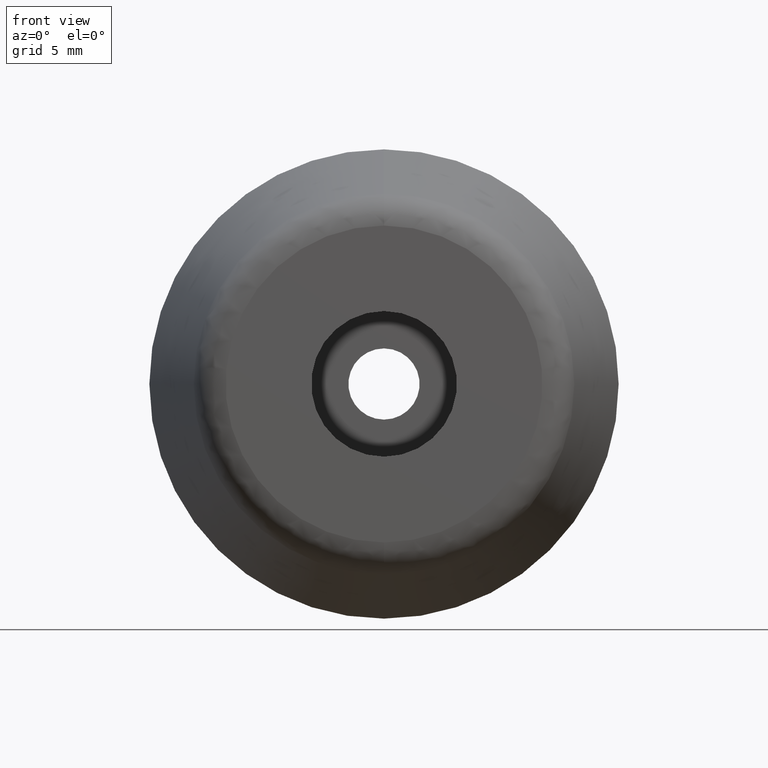
[diagram: clean part render]
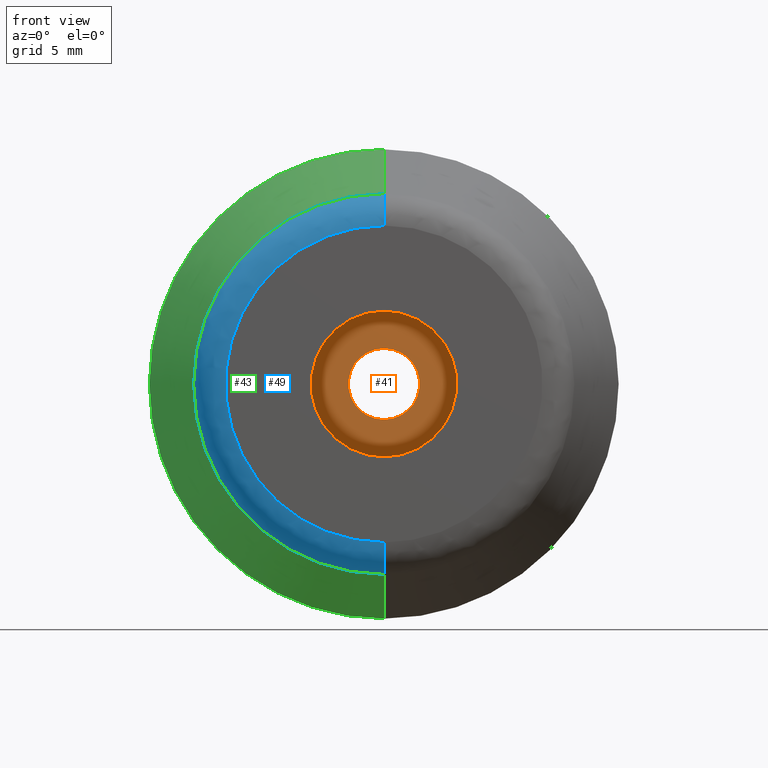
[diagram: same view with three faces highlighted in distinct colors, each labeled with its STEP entity id]
A machine part, front view with three faces highlighted in distinct colors.
Their STEP definitions:

[orange] entity #41 — the highlighted planar face has unit normal (0, -1, -0).
#41=ADVANCED_FACE('',(#63,#64),#62,.T.);
#62=PLANE('',#173);
#63=FACE_OUTER_BOUND('',#174,.T.);
#64=FACE_BOUND('',#175,.T.);
#170=CARTESIAN_POINT('',(-9.35307436087E+00,-9.00000000000E+00,1.03500000000E+01));
#171=DIRECTION('',(0.00000000000E+00,-1.00000000000E+00,-0.00000000000E+00));
#172=DIRECTION('',(0.00000000000E+00,0.00000000000E+00,-1.00000000000E+00));
#173=AXIS2_PLACEMENT_3D('',#170,#171,#172);
#174=EDGE_LOOP('',(#280,#281));
#175=EDGE_LOOP('',(#282,#283));
#280=ORIENTED_EDGE('',*,*,#324,.T.);
#281=ORIENTED_EDGE('',*,*,#325,.T.);
#282=ORIENTED_EDGE('',*,*,#326,.F.);
#283=ORIENTED_EDGE('',*,*,#327,.F.);
#324=EDGE_CURVE('',#370,#371,#372,.T.);
#325=EDGE_CURVE('',#371,#370,#378,.T.);
#326=EDGE_CURVE('',#384,#385,#386,.T.);
#327=EDGE_CURVE('',#385,#384,#392,.T.);
#370=VERTEX_POINT('',#508);
#371=VERTEX_POINT('',#509);
#372=CIRCLE('',#513,4.50000000000E+00);
#378=CIRCLE('',#517,4.50000000000E+00);
#384=VERTEX_POINT('',#518);
#385=VERTEX_POINT('',#519);
#386=CIRCLE('',#523,2.20000000000E+00);
#392=CIRCLE('',#527,2.20000000000E+00);
#508=CARTESIAN_POINT('',(0.00000000000E+00,-9.00000000000E+00,-4.50000000000E+00));
#509=CARTESIAN_POINT('',(2.96059473233E-16,-9.00000000000E+00,4.50000000000E+00));
#510=CARTESIAN_POINT('',(0.00000000000E+00,-9.00000000000E+00,0.00000000000E+00));
#511=DIRECTION('',(0.00000000000E+00,-1.00000000000E+00,-0.00000000000E+00));
#512=DIRECTION('',(-1.22460635382E-16,0.00000000000E+00,-1.00000000000E+00));
#513=AXIS2_PLACEMENT_3D('',#510,#511,#512);
#514=CARTESIAN_POINT('',(0.00000000000E+00,-9.00000000000E+00,0.00000000000E+00));
#515=DIRECTION('',(0.00000000000E+00,-1.00000000000E+00,-0.00000000000E+00));
#516=DIRECTION('',(-1.22460635382E-16,0.00000000000E+00,-1.00000000000E+00));
#517=AXIS2_PLACEMENT_3D('',#514,#515,#516);
#518=CARTESIAN_POINT('',(1.48029736617E-16,-9.00000000000E+00,2.20000000000E+00));
#519=CARTESIAN_POINT('',(0.00000000000E+00,-9.00000000000E+00,-2.20000000000E+00));
#520=CARTESIAN_POINT('',(0.00000000000E+00,-9.00000000000E+00,0.00000000000E+00));
#521=DIRECTION('',(0.00000000000E+00,-1.00000000000E+00,-0.00000000000E+00));
#522=DIRECTION('',(-1.22460635382E-16,0.00000000000E+00,-1.00000000000E+00));
#523=AXIS2_PLACEMENT_3D('',#520,#521,#522);
#524=CARTESIAN_POINT('',(0.00000000000E+00,-9.00000000000E+00,0.00000000000E+00));
#525=DIRECTION('',(0.00000000000E+00,-1.00000000000E+00,-0.00000000000E+00));
#526=DIRECTION('',(-1.22460635382E-16,0.00000000000E+00,-1.00000000000E+00));
#527=AXIS2_PLACEMENT_3D('',#524,#525,#526);

[blue] entity #49 — the highlighted face is a freeform B-spline surface patch.
#49=ADVANCED_FACE('',(#145),#144,.T.);
#144=( BOUNDED_SURFACE() B_SPLINE_SURFACE( 2,2,((#224,#225,#226,#227,#228),(#229,#230,#231,#232,#233),(#234,#235,#236,#237,#238),(#239,#240,#241,#242,#243),(#244,#245,#246,#247,#248)), .UNSPECIFIED.,.F.,.F.,.F.) B_SPLINE_SURFACE_WITH_KNOTS((3,2,3),(3,2,3),(0.00000000000E+00,5.00000000000E-01,1.00000000000E+00),(0.00000000000E+00,5.00000000000E-01,1.00000000000E+00), .UNSPECIFIED. ) GEOMETRIC_REPRESENTATION_ITEM() RATIONAL_B_SPLINE_SURFACE(((1.00000000000E+00,7.60250805153E-01,1.00000000000E+00,7.60250805153E-01,1.00000000000E+00),(7.07106781187E-01,5.37578499727E-01,7.07106781187E-01,5.37578499727E-01,7.07106781187E-01),(1.00000000000E+00,7.60250805153E-01,1.00000000000E+00,7.60250805153E-01,1.00000000000E+00),(7.07106781187E-01,5.37578499727E-01,7.07106781187E-01,5.37578499727E-01,7.07106781187E-01),(1.00000000000E+00,7.60250805153E-01,1.00000000000E+00,7.60250805153E-01,1.00000000000E+00))) REPRESENTATION_ITEM('') SURFACE() );
#145=FACE_OUTER_BOUND('',#249,.T.);
#224=CARTESIAN_POINT('',(-1.44093773622E-15,-1.73119251469E+01,1.17665381347E+01));
#225=CARTESIAN_POINT('',(-1.40829730690E-15,-1.90000000000E+01,1.15000000000E+01));
#226=CARTESIAN_POINT('',(-1.19901357554E-15,-1.90000000000E+01,9.79101220403E+00));
#227=CARTESIAN_POINT('',(-9.89729844187E-16,-1.90000000000E+01,8.08202440807E+00));
#228=CARTESIAN_POINT('',(-9.57089414859E-16,-1.73119251469E+01,7.81548627338E+00));
#229=CARTESIAN_POINT('',(-1.17665381347E+01,-1.73119251469E+01,1.17665381347E+01));
#230=CARTESIAN_POINT('',(-1.15000000000E+01,-1.90000000000E+01,1.15000000000E+01));
#231=CARTESIAN_POINT('',(-9.79101220403E+00,-1.90000000000E+01,9.79101220403E+00));
#232=CARTESIAN_POINT('',(-8.08202440807E+00,-1.90000000000E+01,8.08202440807E+00));
#233=CARTESIAN_POINT('',(-7.81548627338E+00,-1.73119251469E+01,7.81548627338E+00));
#234=CARTESIAN_POINT('',(-1.17665381347E+01,-1.73119251469E+01,-7.20445073039E-16));
#235=CARTESIAN_POINT('',(-1.15000000000E+01,-1.90000000000E+01,-7.04125397386E-16));
#236=CARTESIAN_POINT('',(-9.79101220403E+00,-1.90000000000E+01,-5.99486987737E-16));
#237=CARTESIAN_POINT('',(-8.08202440807E+00,-1.90000000000E+01,-4.94848578088E-16));
#238=CARTESIAN_POINT('',(-7.81548627338E+00,-1.73119251469E+01,-4.78528902435E-16));
#239=CARTESIAN_POINT('',(-1.17665381347E+01,-1.73119251469E+01,-1.17665381347E+01));
#240=CARTESIAN_POINT('',(-1.15000000000E+01,-1.90000000000E+01,-1.15000000000E+01));
#241=CARTESIAN_POINT('',(-9.79101220403E+00,-1.90000000000E+01,-9.79101220403E+00));
#242=CARTESIAN_POINT('',(-8.08202440807E+00,-1.90000000000E+01,-8.08202440807E+00));
#243=CARTESIAN_POINT('',(-7.81548627338E+00,-1.73119251469E+01,-7.81548627338E+00));
#244=CARTESIAN_POINT('',(-4.75901458702E-20,-1.73119251469E+01,-1.17665381347E+01));
#245=CARTESIAN_POINT('',(-4.65121237223E-20,-1.90000000000E+01,-1.15000000000E+01));
#246=CARTESIAN_POINT('',(-3.96000670437E-20,-1.90000000000E+01,-9.79101220403E+00));
#247=CARTESIAN_POINT('',(-3.26880103647E-20,-1.90000000000E+01,-8.08202440807E+00));
#248=CARTESIAN_POINT('',(-3.16099882172E-20,-1.73119251469E+01,-7.81548627338E+00));
#249=EDGE_LOOP('',(#312,#313,#314,#315));
#312=ORIENTED_EDGE('',*,*,#329,.F.);
#313=ORIENTED_EDGE('',*,*,#340,.F.);
#314=ORIENTED_EDGE('',*,*,#333,.T.);
#315=ORIENTED_EDGE('',*,*,#341,.T.);
#329=EDGE_CURVE('',#399,#398,#406,.T.);
#333=EDGE_CURVE('',#433,#426,#434,.T.);
#340=EDGE_CURVE('',#433,#399,#476,.T.);
#341=EDGE_CURVE('',#426,#398,#482,.T.);
#398=VERTEX_POINT('',#528);
#399=VERTEX_POINT('',#529);
#406=CIRCLE('',#537,9.79101220403E+00);
#426=VERTEX_POINT('',#548);
#433=VERTEX_POINT('',#551);
#434=CIRCLE('',#555,1.17665381347E+01);
#476=(BOUNDED_CURVE() B_SPLINE_CURVE(2,(#570,#571,#572),.UNSPECIFIED.,.F.,.F.) B_SPLINE_CURVE_WITH_KNOTS((3,3),(0.00000000000E+00,5.00000000000E-01),.UNSPECIFIED.) CURVE() GEOMETRIC_REPRESENTATION_ITEM() RATIONAL_B_SPLINE_CURVE((1.00000000000E+00,7.60250805153E-01,1.00000000000E+00)) REPRESENTATION_ITEM('') );
#482=(BOUNDED_CURVE() B_SPLINE_CURVE(3,(#573,#574,#575,#576,#577),.UNSPECIFIED.,.F.,.F.) B_SPLINE_CURVE_WITH_KNOTS((4,1,4),(0.00000000000E+00,2.50000001932E-01,5.00000003439E-01),.UNSPECIFIED.) CURVE() GEOMETRIC_REPRESENTATION_ITEM() RATIONAL_B_SPLINE_CURVE((1.00000000000E+00,1.00000000000E+00,1.00000000000E+00,1.00000000000E+00,1.00000000000E+00)) REPRESENTATION_ITEM('') );
#528=CARTESIAN_POINT('',(0.00000000000E+00,-1.90000000000E+01,-9.79101220403E+00));
#529=CARTESIAN_POINT('',(5.92118946467E-16,-1.90000000000E+01,9.79101220403E+00));
#534=CARTESIAN_POINT('',(0.00000000000E+00,-1.90000000000E+01,0.00000000000E+00));
#535=DIRECTION('',(0.00000000000E+00,-1.00000000000E+00,-0.00000000000E+00));
#536=DIRECTION('',(-1.22460635382E-16,0.00000000000E+00,-1.00000000000E+00));
#537=AXIS2_PLACEMENT_3D('',#534,#535,#536);
#548=CARTESIAN_POINT('',(0.00000000000E+00,-1.73119251469E+01,-1.17665381347E+01));
#551=CARTESIAN_POINT('',(-5.92118946467E-16,-1.73119251469E+01,1.17665381347E+01));
#552=CARTESIAN_POINT('',(0.00000000000E+00,-1.73119251469E+01,0.00000000000E+00));
#553=DIRECTION('',(0.00000000000E+00,-1.00000000000E+00,-0.00000000000E+00));
#554=DIRECTION('',(-1.22460635382E-16,0.00000000000E+00,-1.00000000000E+00));
#555=AXIS2_PLACEMENT_3D('',#552,#553,#554);
#570=CARTESIAN_POINT('',(-1.44093773622E-15,-1.73119251469E+01,1.17665381347E+01));
#571=CARTESIAN_POINT('',(-1.40829730690E-15,-1.90000000000E+01,1.15000000000E+01));
#572=CARTESIAN_POINT('',(-1.19901357554E-15,-1.90000000000E+01,9.79101220403E+00));
#573=CARTESIAN_POINT('',(1.77635683940E-15,-1.73119251469E+01,-1.17665381347E+01));
#574=CARTESIAN_POINT('',(1.93184466670E-15,-1.77745120704E+01,-1.16964338038E+01));
#575=CARTESIAN_POINT('',(1.98380966845E-15,-1.86522973029E+01,-1.12028901535E+01));
#576=CARTESIAN_POINT('',(1.50096823544E-15,-1.90028997894E+01,-1.02588720684E+01));
#577=CARTESIAN_POINT('',(1.18423789277E-15,-1.90000000000E+01,-9.79101218616E+00));

[green] entity #43 — the highlighted face is a freeform B-spline surface patch.
#43=ADVANCED_FACE('',(#85),#84,.T.);
#84=( BOUNDED_SURFACE() B_SPLINE_SURFACE( 2,1,((#182,#183),(#184,#185),(#186,#187),(#188,#189),(#190,#191)), .UNSPECIFIED.,.F.,.F.,.F.) B_SPLINE_SURFACE_WITH_KNOTS((3,2,3),(2,2),(0.00000000000E+00,5.00000000000E-01,1.00000000000E+00),(0.00000000000E+00,1.00000000000E+00), .UNSPECIFIED. ) GEOMETRIC_REPRESENTATION_ITEM() RATIONAL_B_SPLINE_SURFACE(((1.00000000000E+00,1.00000000000E+00),(7.07106781187E-01,7.07106781187E-01),(1.00000000000E+00,1.00000000000E+00),(7.07106781187E-01,7.07106781187E-01),(1.00000000000E+00,1.00000000000E+00))) REPRESENTATION_ITEM('') SURFACE() );
#85=FACE_OUTER_BOUND('',#192,.T.);
#182=CARTESIAN_POINT('',(-2.88197065274E-15,-1.73119251469E+01,-1.17665381347E+01));
#183=CARTESIAN_POINT('',(-3.55147571753E-15,0.00000000000E+00,-1.45000000000E+01));
#184=CARTESIAN_POINT('',(-1.17665381347E+01,-1.73119251469E+01,-1.17665381347E+01));
#185=CARTESIAN_POINT('',(-1.45000000000E+01,0.00000000000E+00,-1.45000000000E+01));
#186=CARTESIAN_POINT('',(-1.17665381347E+01,-1.73119251469E+01,2.16147798955E-15));
#187=CARTESIAN_POINT('',(-1.45000000000E+01,0.00000000000E+00,2.66360678815E-15));
#188=CARTESIAN_POINT('',(-1.17665381347E+01,-1.73119251469E+01,1.17665381347E+01));
#189=CARTESIAN_POINT('',(-1.45000000000E+01,0.00000000000E+00,1.45000000000E+01));
#190=CARTESIAN_POINT('',(1.44098532637E-15,-1.73119251469E+01,1.17665381347E+01));
#191=CARTESIAN_POINT('',(1.77573785876E-15,0.00000000000E+00,1.45000000000E+01));
#192=EDGE_LOOP('',(#288,#289,#290,#291));
#288=ORIENTED_EDGE('',*,*,#320,.T.);
#289=ORIENTED_EDGE('',*,*,#332,.F.);
#290=ORIENTED_EDGE('',*,*,#333,.F.);
#291=ORIENTED_EDGE('',*,*,#334,.T.);
#320=EDGE_CURVE('',#342,#343,#344,.T.);
#332=EDGE_CURVE('',#426,#343,#427,.T.);
#333=EDGE_CURVE('',#433,#426,#434,.T.);
#334=EDGE_CURVE('',#433,#342,#440,.T.);
#342=VERTEX_POINT('',#488);
#343=VERTEX_POINT('',#489);
#344=CIRCLE('',#493,1.45000000000E+01);
#426=VERTEX_POINT('',#548);
#427=(BOUNDED_CURVE() B_SPLINE_CURVE(1,(#549,#550),.UNSPECIFIED.,.F.,.F.) B_SPLINE_CURVE_WITH_KNOTS((2,2),(0.00000000000E+00,1.00000000000E+00),.UNSPECIFIED.) CURVE() GEOMETRIC_REPRESENTATION_ITEM() RATIONAL_B_SPLINE_CURVE((1.00000000000E+00,1.00000000000E+00)) REPRESENTATION_ITEM('') );
#433=VERTEX_POINT('',#551);
#434=CIRCLE('',#555,1.17665381347E+01);
#440=(BOUNDED_CURVE() B_SPLINE_CURVE(1,(#556,#557),.UNSPECIFIED.,.F.,.F.) B_SPLINE_CURVE_WITH_KNOTS((2,2),(0.00000000000E+00,1.00000000000E+00),.UNSPECIFIED.) CURVE() GEOMETRIC_REPRESENTATION_ITEM() RATIONAL_B_SPLINE_CURVE((7.50000000000E-01,7.50000000000E-01)) REPRESENTATION_ITEM('') );
#488=CARTESIAN_POINT('',(5.92118946467E-16,0.00000000000E+00,1.45000000000E+01));
#489=CARTESIAN_POINT('',(0.00000000000E+00,0.00000000000E+00,-1.45000000000E+01));
#490=CARTESIAN_POINT('',(0.00000000000E+00,0.00000000000E+00,0.00000000000E+00));
#491=DIRECTION('',(0.00000000000E+00,-1.00000000000E+00,-0.00000000000E+00));
#492=DIRECTION('',(-1.22460635382E-16,0.00000000000E+00,-1.00000000000E+00));
#493=AXIS2_PLACEMENT_3D('',#490,#491,#492);
#548=CARTESIAN_POINT('',(0.00000000000E+00,-1.73119251469E+01,-1.17665381347E+01));
#549=CARTESIAN_POINT('',(-2.88187547245E-15,-1.73119251469E+01,-1.17665381347E+01));
#550=CARTESIAN_POINT('',(-3.55135842608E-15,0.00000000000E+00,-1.45000000000E+01));
#551=CARTESIAN_POINT('',(-5.92118946467E-16,-1.73119251469E+01,1.17665381347E+01));
#552=CARTESIAN_POINT('',(0.00000000000E+00,-1.73119251469E+01,0.00000000000E+00));
#553=DIRECTION('',(0.00000000000E+00,-1.00000000000E+00,-0.00000000000E+00));
#554=DIRECTION('',(-1.22460635382E-16,0.00000000000E+00,-1.00000000000E+00));
#555=AXIS2_PLACEMENT_3D('',#552,#553,#554);
#556=CARTESIAN_POINT('',(4.14483262527E-15,-1.73119251469E+01,1.17665381347E+01));
#557=CARTESIAN_POINT('',(3.55271367880E-15,0.00000000000E+00,1.45000000000E+01));